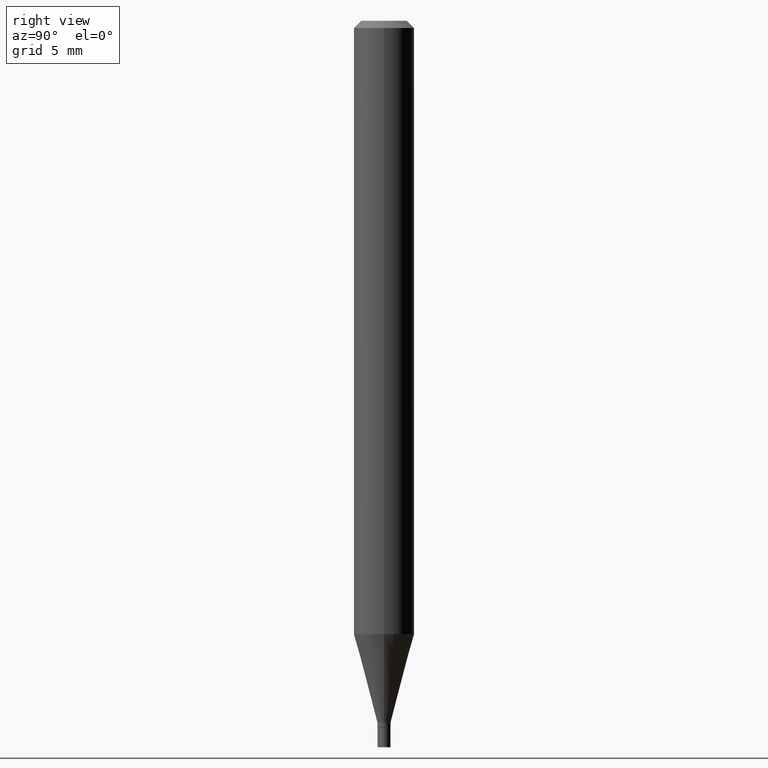
[diagram: clean part render]
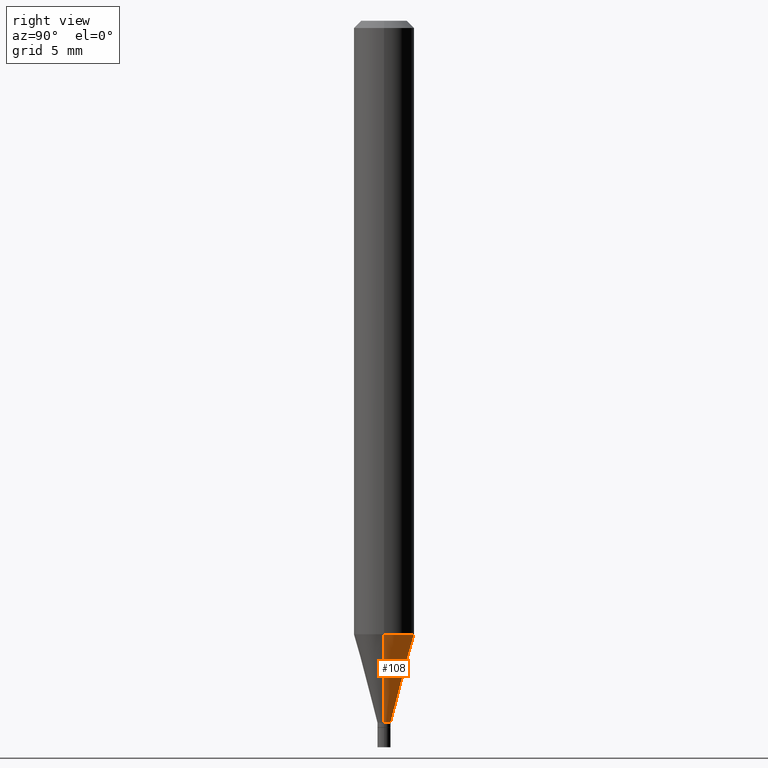
[diagram: same view with one face highlighted and labeled with its STEP entity id]
A machine part, right view. The second image highlights one B-rep face of the part: STEP entity #108.
In plain terms, the highlighted conical surface has half-angle 15 deg.
Its self-contained STEP definition (entity closure, byte-faithful):
#11 = VERTEX_POINT ( 'NONE', #436 ) ;
#19 = VECTOR ( 'NONE', #440, 39.37007874015748854 ) ;
#25 = DIRECTION ( 'NONE',  ( 1.000000000000000000, -6.982962677686266711E-15, 0.000000000000000000 ) ) ;
#29 = DIRECTION ( 'NONE',  ( 1.000000000000000000, -6.982962677686262766E-15, 0.000000000000000000 ) ) ;
#30 = CARTESIAN_POINT ( 'NONE',  ( 3.544707034565356049E-29, -5.060902200653140005E-15, -1.449500000000000233 ) ) ;
#44 = EDGE_CURVE ( 'NONE', #205, #11, #82, .T. ) ;
#53 = VERTEX_POINT ( 'NONE', #386 ) ;
#56 = ORIENTED_EDGE ( 'NONE', *, *, #452, .T. ) ;
#73 = DIRECTION ( 'NONE',  ( -2.445468806185136597E-29, 3.491481338843145583E-15, 1.000000000000000000 ) ) ;
#80 = EDGE_LOOP ( 'NONE', ( #56, #87, #301, #226 ) ) ;
#82 = CIRCLE ( 'NONE', #124, 0.06250000000000000000 ) ;
#87 = ORIENTED_EDGE ( 'NONE', *, *, #197, .T. ) ;
#108 = ADVANCED_FACE ( 'NONE', ( #428 ), #331, .T. ) ;
#124 = AXIS2_PLACEMENT_3D ( 'NONE', #465, #247, #29 ) ;
#126 = VECTOR ( 'NONE', #214, 39.37007874015748854 ) ;
#147 = DIRECTION ( 'NONE',  ( 1.000000000000000000, -6.982962677686266711E-15, 0.000000000000000000 ) ) ;
#170 = CIRCLE ( 'NONE', #357, 0.01349999999999992005 ) ;
#197 = EDGE_CURVE ( 'NONE', #330, #11, #295, .T. ) ;
#205 = VERTEX_POINT ( 'NONE', #291 ) ;
#214 = DIRECTION ( 'NONE',  ( 0.2588190451025212391, 1.565188264969622362E-15, 0.9659258262890679791 ) ) ;
#226 = ORIENTED_EDGE ( 'NONE', *, *, #364, .F. ) ;
#245 = CARTESIAN_POINT ( 'NONE',  ( 3.544707034565356049E-29, -5.060902200653140005E-15, -1.449500000000000233 ) ) ;
#246 = CARTESIAN_POINT ( 'NONE',  ( 0.01349999999999992005, -5.155172196801903565E-15, -1.449500000000000233 ) ) ;
#247 = DIRECTION ( 'NONE',  ( -2.445468806185136597E-29, 3.491481338843145583E-15, 1.000000000000000000 ) ) ;
#255 = CARTESIAN_POINT ( 'NONE',  ( -0.01349999999999992005, -4.964978931325527578E-15, -1.449500000000000233 ) ) ;
#291 = CARTESIAN_POINT ( 'NONE',  ( 0.06249999999999999306, -4.858848466246711769E-15, -1.266629510429125416 ) ) ;
#295 = LINE ( 'NONE', #255, #19 ) ;
#301 = ORIENTED_EDGE ( 'NONE', *, *, #44, .F. ) ;
#307 = AXIS2_PLACEMENT_3D ( 'NONE', #245, #73, #147 ) ;
#326 = CARTESIAN_POINT ( 'NONE',  ( -0.01349999999999992005, -4.471651510183392531E-15, -1.449500000000000233 ) ) ;
#330 = VERTEX_POINT ( 'NONE', #326 ) ;
#331 = CONICAL_SURFACE ( 'NONE', #307, 0.01349999999999992005, 0.2617993877991499629 ) ;
#332 = LINE ( 'NONE', #246, #126 ) ;
#343 = DIRECTION ( 'NONE',  ( -2.445468806185136597E-29, 3.491481338843145583E-15, 1.000000000000000000 ) ) ;
#357 = AXIS2_PLACEMENT_3D ( 'NONE', #30, #343, #25 ) ;
#364 = EDGE_CURVE ( 'NONE', #53, #205, #332, .T. ) ;
#386 = CARTESIAN_POINT ( 'NONE',  ( 0.01349999999999992005, -5.155172196801903565E-15, -1.449500000000000233 ) ) ;
#428 = FACE_OUTER_BOUND ( 'NONE', #80, .T. ) ;
#436 = CARTESIAN_POINT ( 'NONE',  ( -0.06249999999999999306, -3.978324089041258273E-15, -1.266629510429125416 ) ) ;
#440 = DIRECTION ( 'NONE',  ( -0.2588190451025212391, 5.211531920934549464E-15, 0.9659258262890679791 ) ) ;
#452 = EDGE_CURVE ( 'NONE', #53, #330, #170, .T. ) ;
#465 = CARTESIAN_POINT ( 'NONE',  ( 3.097502956747977268E-29, -4.422413298891320100E-15, -1.266629510429125416 ) ) ;